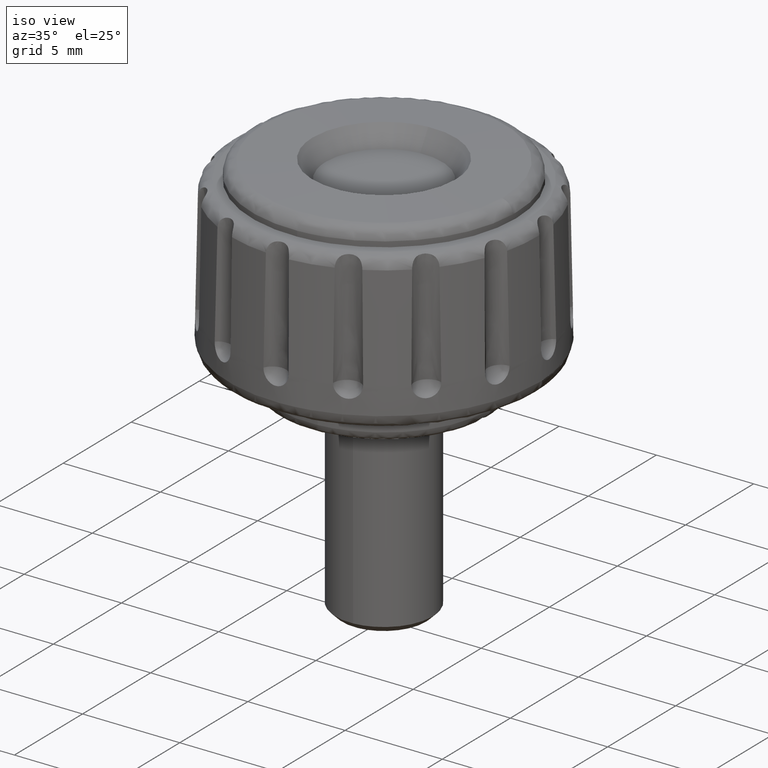
[diagram: clean part render]
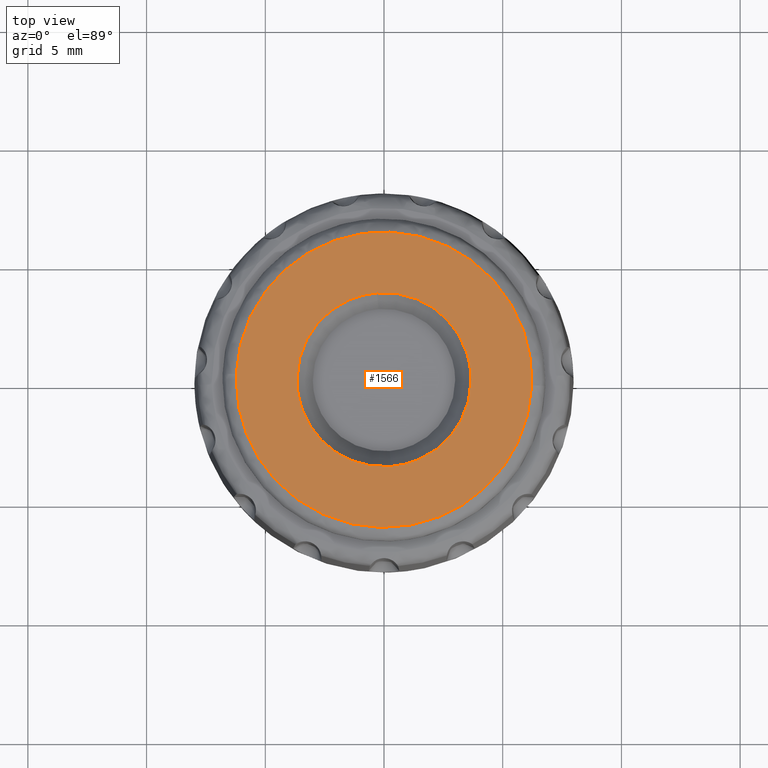
[diagram: tour spotlight — one face highlighted and labeled with its STEP entity id]
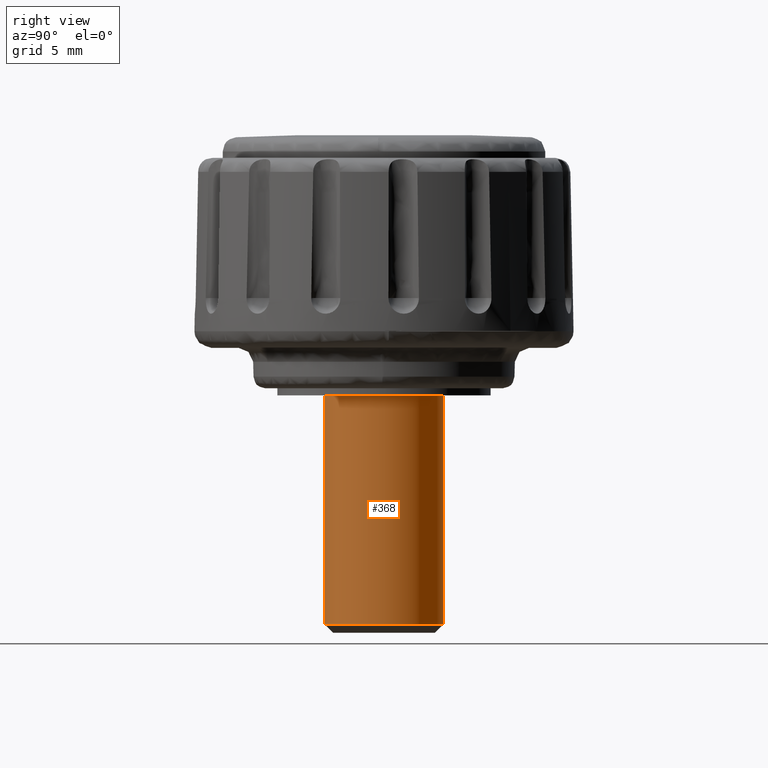
[diagram: tour spotlight — one face highlighted and labeled with its STEP entity id]
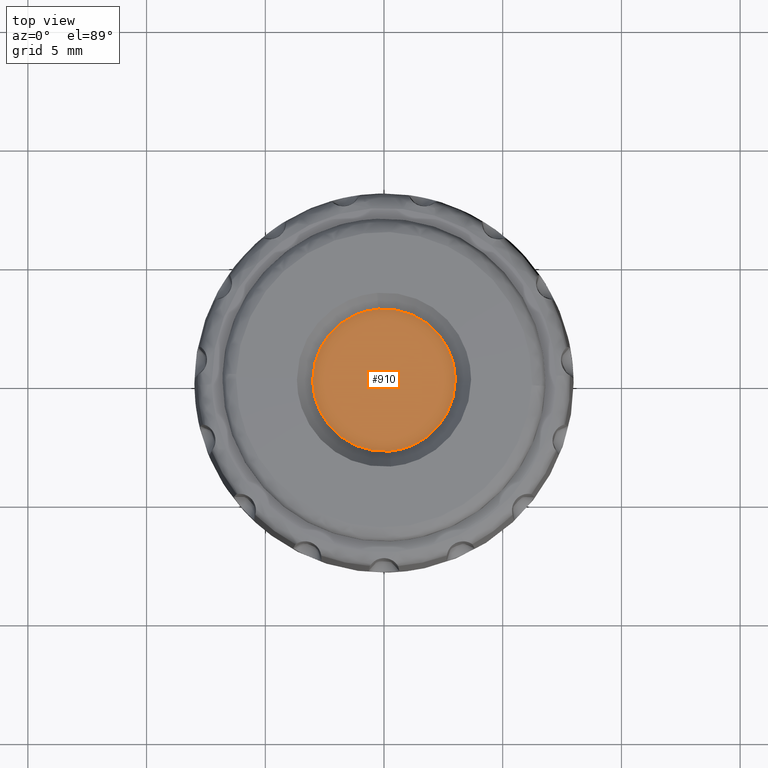
[diagram: tour spotlight — one face highlighted and labeled with its STEP entity id]
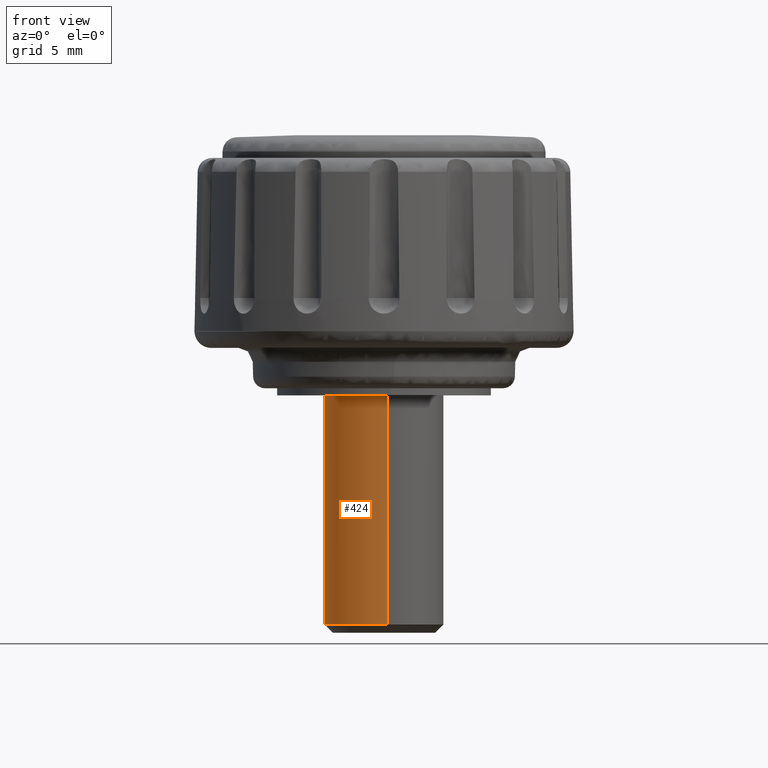
[diagram: tour spotlight — one face highlighted and labeled with its STEP entity id]
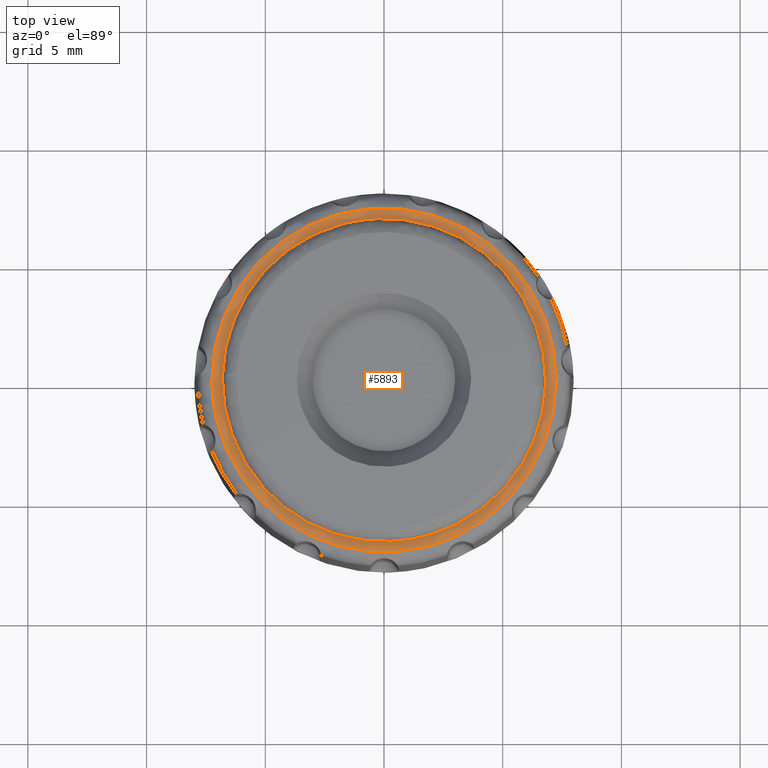
[diagram: tour spotlight — one face highlighted and labeled with its STEP entity id]
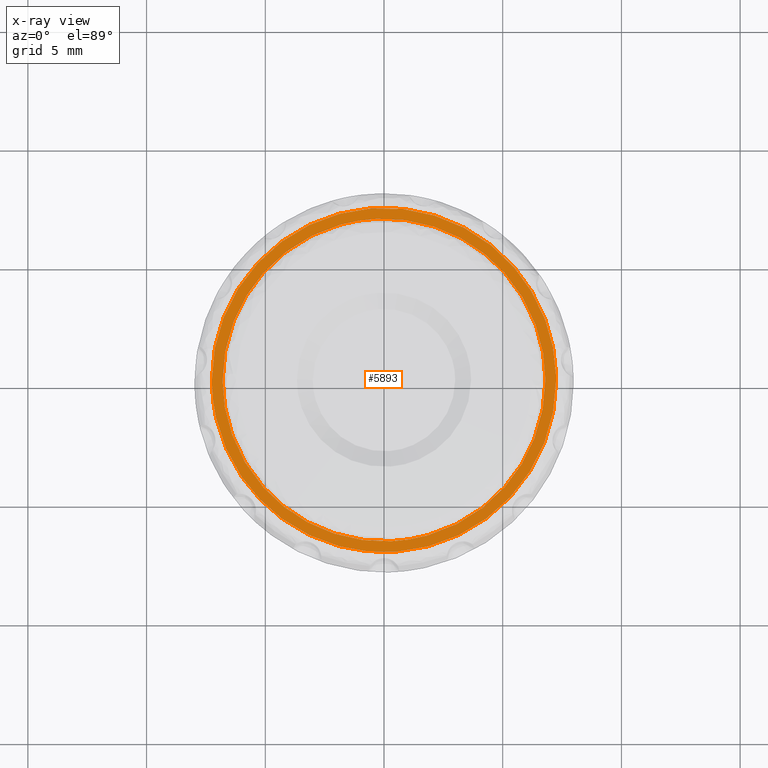
[diagram: x-ray of the same camera — body ghosted, this tour face saturated]
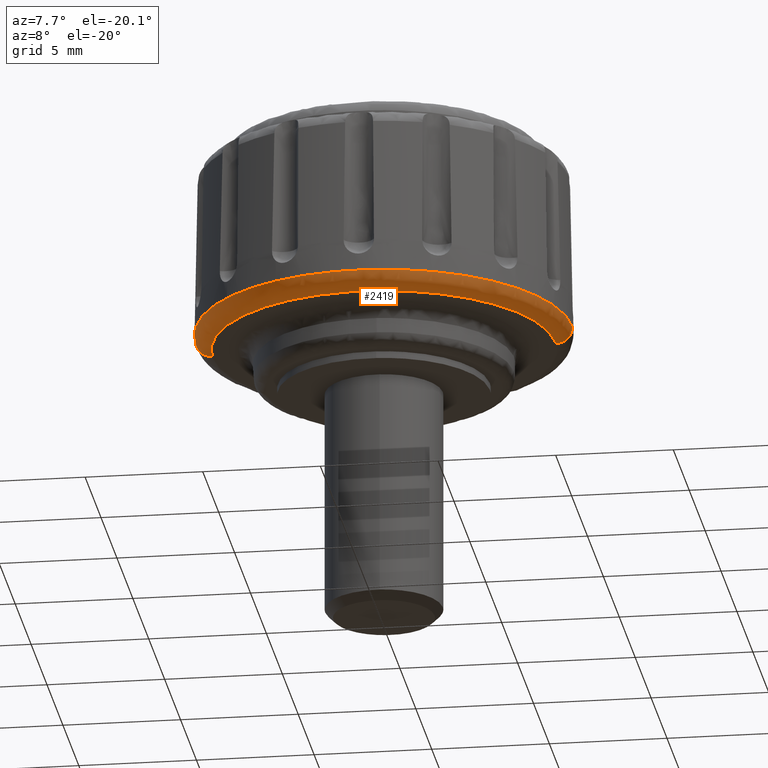
[diagram: tour spotlight — one face highlighted and labeled with its STEP entity id]
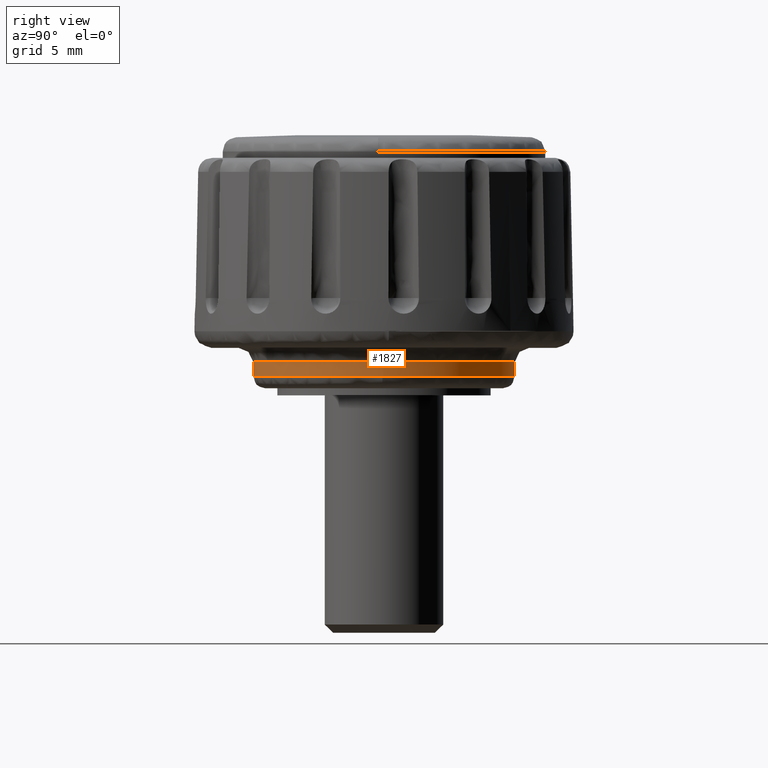
[diagram: tour spotlight — one face highlighted and labeled with its STEP entity id]
A machine part: a face-by-face anatomy tour. The part has 70 B-rep faces; the first image is the clean iso view, then the 7 largest visible faces are spotlighted one at a time (largest first), each with its STEP entity span.

Face 1 — top view, entity #1566. In plain terms, the highlighted face is a freeform B-spline surface patch.
Definition (entity closure, byte-faithful):
#930=CARTESIAN_POINT('',(-0.287849710456376,3.657477354075394,10.955126627766569));
#931=VERTEX_POINT('',#930);
#937=CARTESIAN_POINT('',(-3.668787000000000,0.0,10.955126627763621));
#938=VERTEX_POINT('',#937);
#939=CARTESIAN_POINT('',(-3.668787000000000,0.0,10.955126627763621));
#940=CARTESIAN_POINT('',(-3.668787000000081,3.391391818703396,10.955126627765093));
#941=CARTESIAN_POINT('',(-0.287849710456376,3.657477354075394,10.955126627766576));
#949=(BOUNDED_CURVE()B_SPLINE_CURVE(2,(#939,#940,#941),.UNSPECIFIED.,.F.,.U.)B_SPLINE_CURVE_WITH_KNOTS((3,3),(0.0,0.236331300631917),.UNSPECIFIED.)CURVE()GEOMETRIC_REPRESENTATION_ITEM()RATIONAL_B_SPLINE_CURVE((1.0,0.723120658606193,0.969723356170041))REPRESENTATION_ITEM(''));
#950=EDGE_CURVE('',#938,#931,#949,.T.);
#952=CARTESIAN_POINT('',(0.287849710456377,-3.657477354075394,10.955126627766569));
#953=VERTEX_POINT('',#952);
#954=CARTESIAN_POINT('',(0.287849710456377,-3.657477354075394,10.955126627766576));
#955=CARTESIAN_POINT('',(0.144147033827620,-3.668787000002023,10.955126627766516));
#956=CARTESIAN_POINT('',(1.568727E-013,-3.668787000001982,10.955126627766459));
#957=CARTESIAN_POINT('',(-3.668786999999925,-3.668787000000951,10.955126627764983));
#958=CARTESIAN_POINT('',(-3.668787000000000,0.0,10.955126627763621));
#966=(BOUNDED_CURVE()B_SPLINE_CURVE(2,(#954,#955,#956,#957,#958),.UNSPECIFIED.,.F.,.U.)B_SPLINE_CURVE_WITH_KNOTS((3,2,3),(0.736331300631917,0.750000000000000,1.0),.UNSPECIFIED.)CURVE()GEOMETRIC_REPRESENTATION_ITEM()RATIONAL_B_SPLINE_CURVE((0.969723356170041,0.983986122580355,1.0,0.707106781186548,1.0))REPRESENTATION_ITEM(''));
#967=EDGE_CURVE('',#953,#938,#966,.T.);
#999=CARTESIAN_POINT('',(3.668787000000000,0.0,10.955126627763621));
#1000=VERTEX_POINT('',#999);
#1001=CARTESIAN_POINT('',(3.668787000000000,0.0,10.955126627763621));
#1002=CARTESIAN_POINT('',(3.668787000000082,-3.391391818703396,10.955126627765093));
#1003=CARTESIAN_POINT('',(0.287849710456377,-3.657477354075394,10.955126627766576));
#1011=(BOUNDED_CURVE()B_SPLINE_CURVE(2,(#1001,#1002,#1003),.UNSPECIFIED.,.F.,.U.)B_SPLINE_CURVE_WITH_KNOTS((3,3),(0.500000000000000,0.736331300631917),.UNSPECIFIED.)CURVE()GEOMETRIC_REPRESENTATION_ITEM()RATIONAL_B_SPLINE_CURVE((1.0,0.723120658606193,0.969723356170041))REPRESENTATION_ITEM(''));
#1012=EDGE_CURVE('',#1000,#953,#1011,.T.);
#1014=CARTESIAN_POINT('',(-0.287849710456376,3.657477354075394,10.955126627766576));
#1015=CARTESIAN_POINT('',(-0.144147033827619,3.668787000002023,10.955126627766516));
#1016=CARTESIAN_POINT('',(-1.560181E-013,3.668787000001982,10.955126627766459));
#1017=CARTESIAN_POINT('',(3.668786999999925,3.668787000000951,10.955126627764983));
#1018=CARTESIAN_POINT('',(3.668787000000000,0.0,10.955126627763621));
#1026=(BOUNDED_CURVE()B_SPLINE_CURVE(2,(#1014,#1015,#1016,#1017,#1018),.UNSPECIFIED.,.F.,.U.)B_SPLINE_CURVE_WITH_KNOTS((3,2,3),(0.236331300631917,0.250000000000000,0.500000000000000),.UNSPECIFIED.)CURVE()GEOMETRIC_REPRESENTATION_ITEM()RATIONAL_B_SPLINE_CURVE((0.969723356170041,0.983986122580355,1.0,0.707106781186548,1.0))REPRESENTATION_ITEM(''));
#1027=EDGE_CURVE('',#931,#1000,#1026,.T.);
#1440=CARTESIAN_POINT('',(-6.842584938718723,-6.841369040468142,10.687590337370745));
#1441=CARTESIAN_POINT('',(-3.423075122341281,-6.844933712892269,10.843741552545644));
#1442=CARTESIAN_POINT('',(3.423073881411423,-6.844933712892269,10.843741552545644));
#1443=CARTESIAN_POINT('',(6.842582460735132,-6.841369043051316,10.687590450527335));
#1444=CARTESIAN_POINT('',(-6.846148977055802,-3.422466222745382,10.843686033759671));
#1445=CARTESIAN_POINT('',(-3.424858999507990,-3.424250416625456,10.999999999999940));
#1446=CARTESIAN_POINT('',(3.424857757931443,-3.424250416625456,10.999999999999940));
#1447=CARTESIAN_POINT('',(6.846146497782872,-3.422466224038314,10.843686147034161));
#1448=CARTESIAN_POINT('',(-6.846148977055802,3.422466936260723,10.843686033759671));
#1449=CARTESIAN_POINT('',(-3.424858999507990,3.424251130512766,10.999999999999940));
#1450=CARTESIAN_POINT('',(3.424857757931443,3.424251130512766,10.999999999999940));
#1451=CARTESIAN_POINT('',(6.846146497782872,3.422466937553656,10.843686147034161));
#1452=CARTESIAN_POINT('',(-6.842584937233433,6.841370465270901,10.687590272318999));
#1453=CARTESIAN_POINT('',(-3.423075121597861,6.844935138436642,10.843741487426083));
#1454=CARTESIAN_POINT('',(3.423073880668004,6.844935138436642,10.843741487426083));
#1455=CARTESIAN_POINT('',(6.842582459249843,6.841370467854076,10.687590385475580));
#1463=(BOUNDED_SURFACE()B_SPLINE_SURFACE(2,2,((#1440,#1444,#1448,#1452),(#1441,#1445,#1449,#1453),(#1442,#1446,#1450,#1454),(#1443,#1447,#1451,#1455)),.UNSPECIFIED.,.F.,.F.,.U.)B_SPLINE_SURFACE_WITH_KNOTS((3,1,3),(3,1,3),(59.045661298370362,65.726838369230023,72.408013018035888),(59.046848515129092,65.726838369230023,72.406829615974431),.UNSPECIFIED.)GEOMETRIC_REPRESENTATION_ITEM()RATIONAL_B_SPLINE_SURFACE(((1.001042451114767,1.000521318185178,1.000521318185178,1.001042451332059),(1.000521132929589,1.0,1.0,1.000521133146881),(1.000521132929589,1.0,1.0,1.000521133146881),(1.001042450736792,1.000521317807203,1.000521317807203,1.001042450954084)))REPRESENTATION_ITEM('')SURFACE());
#1464=CARTESIAN_POINT('',(6.220475634358385,-0.234617565187762,10.870779798733491));
#1465=VERTEX_POINT('',#1464);
#1466=CARTESIAN_POINT('',(-6.224898594377520,0.0,10.870779798764380));
#1467=VERTEX_POINT('',#1466);
#1468=CARTESIAN_POINT('',(6.220475634358385,-0.234617565187762,10.870779798733491));
#1469=CARTESIAN_POINT('',(6.208173783704917,-0.561439092364687,10.870779798733560));
#1470=CARTESIAN_POINT('',(6.150929462350280,-1.050201036425728,10.870779798733579));
#1471=CARTESIAN_POINT('',(5.989891748375871,-1.723595386942302,10.870779798734009));
#1472=CARTESIAN_POINT('',(5.766315008530384,-2.392481588515238,10.870779798734500));
#1473=CARTESIAN_POINT('',(5.434895953793697,-3.073380094717841,10.870779798735279));
#1474=CARTESIAN_POINT('',(4.967933490291302,-3.776338892214609,10.870779798736461));
#1475=CARTESIAN_POINT('',(4.418799920910224,-4.418382387793636,10.870779798737580));
#1476=CARTESIAN_POINT('',(3.692407329620270,-5.044846080415121,10.870779798739610));
#1477=CARTESIAN_POINT('',(2.896846377810043,-5.533686258949026,10.870779798741580));
#1478=CARTESIAN_POINT('',(2.144970437151708,-5.859160479716719,10.870779798743200));
#1479=CARTESIAN_POINT('',(1.432803263818127,-6.071930159435859,10.870779798745261));
#1480=CARTESIAN_POINT('',(0.713061734980990,-6.199296783041921,10.870779798746820));
#1481=CARTESIAN_POINT('',(0.033539385203336,-6.235952809869727,10.870779798748559));
#1482=CARTESIAN_POINT('',(-0.658088821247952,-6.201923674787508,10.870779798750281));
#1483=CARTESIAN_POINT('',(-1.243373519225865,-6.110325084727606,10.870779798751750));
#1484=CARTESIAN_POINT('',(-1.852346690451766,-5.951389304826133,10.870779798753320));
#1485=CARTESIAN_POINT('',(-2.528457748014136,-5.709836163707545,10.870779798754519));
#1486=CARTESIAN_POINT('',(-3.200468850414641,-5.360333706327431,10.870779798757511));
#1487=CARTESIAN_POINT('',(-3.850720214243210,-4.905904046801412,10.870779798757461));
#1488=CARTESIAN_POINT('',(-4.421181401521106,-4.409607004379440,10.870779798760360));
#1489=CARTESIAN_POINT('',(-4.985783033724323,-3.763768094997667,10.870779798760820));
#1490=CARTESIAN_POINT('',(-5.464237616751936,-3.022010715853714,10.870779798762539));
#1491=CARTESIAN_POINT('',(-5.853324708001634,-2.187988149793772,10.870779798762950));
#1492=CARTESIAN_POINT('',(-6.147857610609179,-1.182406979152248,10.870779798764820));
#1493=CARTESIAN_POINT('',(-6.224952292955317,-0.415111123709290,10.870779798763429));
#1494=CARTESIAN_POINT('',(-6.224898594377520,0.0,10.870779798764380));
#1495=B_SPLINE_CURVE_WITH_KNOTS('',3,(#1468,#1469,#1470,#1471,#1472,#1473,#1474,#1475,#1476,#1477,#1478,#1479,#1480,#1481,#1482,#1483,#1484,#1485,#1486,#1487,#1488,#1489,#1490,#1491,#1492,#1493,#1494),.UNSPECIFIED.,.F.,.U.,(4,1,1,1,1,1,1,1,1,1,1,1,1,1,1,1,1,1,1,1,1,1,1,1,4),(8.908252E-009,0.981154910276175,1.471742935627116,2.075538776860071,3.094447347951654,3.735984203134551,4.603940079645629,5.622848441756098,6.604017890105361,7.396501706436810,8.075771319313601,8.830520001088532,9.585251690397197,10.113559408550129,10.906043012866160,11.358891374113259,12.000428057036389,13.057073436578040,13.623133194608659,14.377877755639171,15.321311323758110,16.189269197168102,17.019490240696818,18.076130416314111,19.321452132312238),.UNSPECIFIED.);
#1496=EDGE_CURVE('',#1465,#1467,#1495,.T.);
#1497=ORIENTED_EDGE('',*,*,#1496,.F.);
#1498=CARTESIAN_POINT('',(6.224898594377520,0.0,10.870779798764380));
#1499=VERTEX_POINT('',#1498);
#1500=CARTESIAN_POINT('',(6.224898594377520,0.0,10.870779798764380));
#1501=CARTESIAN_POINT('',(6.224898594749059,-0.117350472954726,10.870779798748940));
#1502=CARTESIAN_POINT('',(6.220475634358385,-0.234617565187762,10.870779798733494));
#1510=(BOUNDED_CURVE()B_SPLINE_CURVE(2,(#1500,#1501,#1502),.UNSPECIFIED.,.F.,.U.)B_SPLINE_CURVE_WITH_KNOTS((3,3),(0.500000000000000,0.506613471418338),.UNSPECIFIED.)CURVE()GEOMETRIC_REPRESENTATION_ITEM()RATIONAL_B_SPLINE_CURVE((1.0,0.992251836275009,0.984913610624737))REPRESENTATION_ITEM(''));
#1511=EDGE_CURVE('',#1499,#1465,#1510,.T.);
#1512=ORIENTED_EDGE('',*,*,#1511,.F.);
#1513=CARTESIAN_POINT('',(-6.220475634358387,0.234617565187760,10.870779798733491));
#1514=VERTEX_POINT('',#1513);
#1515=CARTESIAN_POINT('',(-6.220475634358387,0.234617565187760,10.870779798733491));
#1516=CARTESIAN_POINT('',(-6.210056680379447,0.511157504933925,10.870779798733530));
#1517=CARTESIAN_POINT('',(-6.153553183164426,1.050302957351179,10.870779798733601));
#1518=CARTESIAN_POINT('',(-5.948377312421779,1.908435589016964,10.870779798734111));
#1519=CARTESIAN_POINT('',(-5.643904917920787,2.670221266301666,10.870779798734810));
#1520=CARTESIAN_POINT('',(-5.216903175688434,3.427209381068474,10.870779798735949));
#1521=CARTESIAN_POINT('',(-4.749248359759423,4.054143930521550,10.870779798736921));
#1522=CARTESIAN_POINT('',(-4.165891679507184,4.647019269349337,10.870779798738351));
#1523=CARTESIAN_POINT('',(-3.632052480824791,5.069271581167365,10.870779798740070));
#1524=CARTESIAN_POINT('',(-3.068950453887775,5.427158789095152,10.870779798740140));
#1525=CARTESIAN_POINT('',(-2.551981429822660,5.689217656667692,10.870779798744151));
#1526=CARTESIAN_POINT('',(-1.917899096820159,5.934528453626548,10.870779798742920));
#1527=CARTESIAN_POINT('',(-1.272836427400053,6.108236415274913,10.870779798745870));
#1528=CARTESIAN_POINT('',(-0.587213207010353,6.208226936720228,10.870779798747099));
#1529=CARTESIAN_POINT('',(0.205506133415395,6.241393670858670,10.870779798749190));
#1530=CARTESIAN_POINT('',(1.047766439666529,6.161446601218815,10.870779798751240));
#1531=CARTESIAN_POINT('',(2.025179456651024,5.912689759735097,10.870779798753690));
#1532=CARTESIAN_POINT('',(2.872861355758932,5.550490148683154,10.870779798755800));
#1533=CARTESIAN_POINT('',(3.664078631518977,5.056188420623236,10.870779798757789));
#1534=CARTESIAN_POINT('',(4.225891860324650,4.587944178986620,10.870779798759211));
#1535=CARTESIAN_POINT('',(4.741275118624464,4.053111346957226,10.870779798760470));
#1536=CARTESIAN_POINT('',(5.242377243547389,3.404502611615115,10.870779798762040));
#1537=CARTESIAN_POINT('',(5.678376202820231,2.606666132226561,10.870779798762211));
#1538=CARTESIAN_POINT('',(5.956126082825019,1.849456570909697,10.870779798764319));
#1539=CARTESIAN_POINT('',(6.164270481631395,1.018878871042433,10.870779798764531));
#1540=CARTESIAN_POINT('',(6.224956720280467,0.415112489958783,10.870779798763721));
#1541=CARTESIAN_POINT('',(6.224898594377520,0.0,10.870779798764380));
#1542=B_SPLINE_CURVE_WITH_KNOTS('',3,(#1515,#1516,#1517,#1518,#1519,#1520,#1521,#1522,#1523,#1524,#1525,#1526,#1527,#1528,#1529,#1530,#1531,#1532,#1533,#1534,#1535,#1536,#1537,#1538,#1539,#1540,#1541),.UNSPECIFIED.,.F.,.U.,(4,1,1,1,1,1,1,1,1,1,1,1,1,1,1,1,1,1,1,1,1,1,1,1,4),(8.904493E-009,0.830208248988406,1.622689593648172,2.641597926346634,3.283133570486971,4.226566586188028,4.981313433393490,5.773797305607783,6.264382520557284,6.981386172531737,7.509710302847177,8.302188278837862,8.981463517382805,9.585251690396126,10.679620096454910,11.509839433170450,12.604224821819830,13.434447314878669,14.302402959731999,14.792987655271050,15.660945918064170,16.755327638871311,17.510073509401099,18.076130416314069,19.321452132312270),.UNSPECIFIED.);
#1543=EDGE_CURVE('',#1514,#1499,#1542,.T.);
#1544=ORIENTED_EDGE('',*,*,#1543,.F.);
#1545=CARTESIAN_POINT('',(-6.224898594377520,0.0,10.870779798764380));
#1546=CARTESIAN_POINT('',(-6.224898594749060,0.117350472954725,10.870779798748938));
#1547=CARTESIAN_POINT('',(-6.220475634358387,0.234617565187760,10.870779798733494));
#1555=(BOUNDED_CURVE()B_SPLINE_CURVE(2,(#1545,#1546,#1547),.UNSPECIFIED.,.F.,.U.)B_SPLINE_CURVE_WITH_KNOTS((3,3),(0.0,0.006613471418338),.UNSPECIFIED.)CURVE()GEOMETRIC_REPRESENTATION_ITEM()RATIONAL_B_SPLINE_CURVE((1.0,0.992251836275009,0.984913610624737))REPRESENTATION_ITEM(''));
#1556=EDGE_CURVE('',#1467,#1514,#1555,.T.);
#1557=ORIENTED_EDGE('',*,*,#1556,.F.);
#1558=EDGE_LOOP('',(#1497,#1512,#1544,#1557));
#1559=FACE_OUTER_BOUND('',#1558,.T.);
#1560=ORIENTED_EDGE('',*,*,#1012,.T.);
#1561=ORIENTED_EDGE('',*,*,#967,.T.);
#1562=ORIENTED_EDGE('',*,*,#950,.T.);
#1563=ORIENTED_EDGE('',*,*,#1027,.T.);
#1564=EDGE_LOOP('',(#1560,#1561,#1562,#1563));
#1565=FACE_BOUND('',#1564,.T.);
#1566=ADVANCED_FACE('',(#1559,#1565),#1463,.T.);

Face 2 — right view, entity #368. In plain terms, the highlighted face is a freeform B-spline surface patch.
Definition (entity closure, byte-faithful):
#191=CARTESIAN_POINT('',(0.196147739366928,-2.492293334335137,-9.653777999993935));
#192=VERTEX_POINT('',#191);
#198=CARTESIAN_POINT('',(0.152620301198658,-2.495337060130540,-9.653778000000003));
#199=VERTEX_POINT('',#198);
#200=CARTESIAN_POINT('',(0.196147739366928,-2.492293334335138,-9.653777999993935));
#201=CARTESIAN_POINT('',(0.174397301698631,-2.494005130901095,-9.653777999996970));
#202=CARTESIAN_POINT('',(0.152620301198658,-2.495337060130540,-9.653778000000003));
#210=(BOUNDED_CURVE()B_SPLINE_CURVE(2,(#200,#201,#202),.UNSPECIFIED.,.F.,.U.)B_SPLINE_CURVE_WITH_KNOTS((3,3),(0.736331300629545,0.739333034683754),.UNSPECIFIED.)CURVE()GEOMETRIC_REPRESENTATION_ITEM()RATIONAL_B_SPLINE_CURVE((0.969723356165092,0.972855551152138,0.976072196929787))REPRESENTATION_ITEM(''));
#211=EDGE_CURVE('',#192,#199,#210,.T.);
#249=CARTESIAN_POINT('',(-0.152620301198658,2.495337060130540,-9.653777999999999));
#250=VERTEX_POINT('',#249);
#264=CARTESIAN_POINT('',(2.500000000000000,0.0,-9.653778000000001));
#265=VERTEX_POINT('',#264);
#266=CARTESIAN_POINT('',(-0.152620301198658,2.495337060130541,-9.653777999999999));
#267=CARTESIAN_POINT('',(-0.076381382958495,2.499999999999784,-9.653777999999999));
#268=CARTESIAN_POINT('',(1.290077E-014,2.499999999999787,-9.653777999999999));
#269=CARTESIAN_POINT('',(2.500000000000006,2.499999999999897,-9.653778000000001));
#270=CARTESIAN_POINT('',(2.500000000000000,0.0,-9.653778000000001));
#278=(BOUNDED_CURVE()B_SPLINE_CURVE(2,(#266,#267,#268,#269,#270),.UNSPECIFIED.,.F.,.U.)B_SPLINE_CURVE_WITH_KNOTS((3,2,3),(0.239333034683754,0.250000000000000,0.500000000000000),.UNSPECIFIED.)CURVE()GEOMETRIC_REPRESENTATION_ITEM()RATIONAL_B_SPLINE_CURVE((0.976072196929787,0.987502872774213,1.0,0.707106781186548,1.0))REPRESENTATION_ITEM(''));
#279=EDGE_CURVE('',#250,#265,#278,.T.);
#281=CARTESIAN_POINT('',(2.500000000000000,0.0,-9.653778000000001));
#282=CARTESIAN_POINT('',(2.500000000000238,-2.310976229104955,-9.653777999996967));
#283=CARTESIAN_POINT('',(0.196147739366928,-2.492293334335138,-9.653777999993935));
#291=(BOUNDED_CURVE()B_SPLINE_CURVE(2,(#281,#282,#283),.UNSPECIFIED.,.F.,.U.)B_SPLINE_CURVE_WITH_KNOTS((3,3),(0.500000000000000,0.736331300629545),.UNSPECIFIED.)CURVE()GEOMETRIC_REPRESENTATION_ITEM()RATIONAL_B_SPLINE_CURVE((1.0,0.723120658608971,0.969723356165092))REPRESENTATION_ITEM(''));
#292=EDGE_CURVE('',#265,#192,#291,.T.);
#301=CARTESIAN_POINT('',(-0.152621348837143,2.495336996054667,0.241344450000000));
#302=CARTESIAN_POINT('',(2.342715647217524,2.647958344891809,0.241344450000000));
#303=CARTESIAN_POINT('',(2.495336996054667,0.152621348837143,0.241344450000000));
#304=CARTESIAN_POINT('',(2.647958344891809,-2.342715647217524,0.241344450000000));
#305=CARTESIAN_POINT('',(0.152621348837143,-2.495336996054667,0.241344450000000));
#306=CARTESIAN_POINT('',(-0.152621348837143,2.495336996054667,-9.901156061250003));
#307=CARTESIAN_POINT('',(2.342715647217524,2.647958344891809,-9.901156061250003));
#308=CARTESIAN_POINT('',(2.495336996054667,0.152621348837143,-9.901156061250003));
#309=CARTESIAN_POINT('',(2.647958344891809,-2.342715647217524,-9.901156061250003));
#310=CARTESIAN_POINT('',(0.152621348837143,-2.495336996054667,-9.901156061250003));
#318=(BOUNDED_SURFACE()B_SPLINE_SURFACE(2,1,((#301,#306),(#302,#307),(#303,#308),(#304,#309),(#305,#310)),.UNSPECIFIED.,.F.,.F.,.U.)B_SPLINE_SURFACE_WITH_KNOTS((3,2,3),(2,2),(0.0,4.142135623730949,8.284271247461899),(0.0,10.142500511250010),.UNSPECIFIED.)GEOMETRIC_REPRESENTATION_ITEM()RATIONAL_B_SPLINE_SURFACE(((1.0,1.0),(0.707106781186548,0.707106781186548),(1.0,1.0),(0.707106781186548,0.707106781186548),(1.0,1.0)))REPRESENTATION_ITEM('')SURFACE());
#319=ORIENTED_EDGE('',*,*,#279,.F.);
#320=CARTESIAN_POINT('',(-0.152620314147655,2.495337059338556,-2.220446E-016));
#321=VERTEX_POINT('',#320);
#322=CARTESIAN_POINT('',(-0.152620314147655,2.495337059338556,-2.220446E-016));
#323=CARTESIAN_POINT('',(-0.152620301198658,2.495337060130540,-9.653777999999999));
#324=QUASI_UNIFORM_CURVE('',1,(#322,#323),.UNSPECIFIED.,.F.,.U.);
#325=EDGE_CURVE('',#321,#250,#324,.T.);
#326=ORIENTED_EDGE('',*,*,#325,.F.);
#327=CARTESIAN_POINT('',(2.500000000000000,0.0,0.0));
#328=VERTEX_POINT('',#327);
#329=CARTESIAN_POINT('',(-0.152620314147654,2.495337059338556,-2.220446E-016));
#330=CARTESIAN_POINT('',(-0.076381389451147,2.499999999999788,-2.188537E-016));
#331=CARTESIAN_POINT('',(1.276611E-014,2.499999999999791,-2.154617E-016));
#332=CARTESIAN_POINT('',(2.500000000000006,2.499999999999898,-1.044394E-016));
#333=CARTESIAN_POINT('',(2.500000000000000,0.0,0.0));
#341=(BOUNDED_CURVE()B_SPLINE_CURVE(2,(#329,#330,#331,#332,#333),.UNSPECIFIED.,.F.,.U.)B_SPLINE_CURVE_WITH_KNOTS((3,2,3),(0.239333033788360,0.250000000000000,0.500000000000000),.UNSPECIFIED.)CURVE()GEOMETRIC_REPRESENTATION_ITEM()RATIONAL_B_SPLINE_CURVE((0.976072195010787,0.987502871725194,1.0,0.707106781186548,1.0))REPRESENTATION_ITEM(''));
#342=EDGE_CURVE('',#321,#328,#341,.T.);
#343=ORIENTED_EDGE('',*,*,#342,.T.);
#344=CARTESIAN_POINT('',(0.152620314147654,-2.495337059338556,-2.220446E-016));
#345=VERTEX_POINT('',#344);
#346=CARTESIAN_POINT('',(2.500000000000000,0.0,0.0));
#347=CARTESIAN_POINT('',(2.499999999999994,-2.351766144244104,-1.110223E-016));
#348=CARTESIAN_POINT('',(0.152620314147654,-2.495337059338556,-2.220446E-016));
#356=(BOUNDED_CURVE()B_SPLINE_CURVE(2,(#346,#347,#348),.UNSPECIFIED.,.F.,.U.)B_SPLINE_CURVE_WITH_KNOTS((3,3),(0.500000000000000,0.739333033788360),.UNSPECIFIED.)CURVE()GEOMETRIC_REPRESENTATION_ITEM()RATIONAL_B_SPLINE_CURVE((1.0,0.719603909461353,0.976072195010788))REPRESENTATION_ITEM(''));
#357=EDGE_CURVE('',#328,#345,#356,.T.);
#358=ORIENTED_EDGE('',*,*,#357,.T.);
#359=CARTESIAN_POINT('',(0.152620314147654,-2.495337059338556,-2.220446E-016));
#360=CARTESIAN_POINT('',(0.152620301198658,-2.495337060130540,-9.653778000000003));
#361=QUASI_UNIFORM_CURVE('',1,(#359,#360),.UNSPECIFIED.,.F.,.U.);
#362=EDGE_CURVE('',#345,#199,#361,.T.);
#363=ORIENTED_EDGE('',*,*,#362,.T.);
#364=ORIENTED_EDGE('',*,*,#211,.F.);
#365=ORIENTED_EDGE('',*,*,#292,.F.);
#366=EDGE_LOOP('',(#319,#326,#343,#358,#363,#364,#365));
#367=FACE_OUTER_BOUND('',#366,.T.);
#368=ADVANCED_FACE('',(#367),#318,.T.);

Face 3 — top view, entity #910. In plain terms, the highlighted face is a freeform B-spline surface patch.
Definition (entity closure, byte-faithful):
#839=CARTESIAN_POINT('',(-3.299699988370835,-3.298784314504252,10.0));
#840=CARTESIAN_POINT('',(3.299700149303376,-3.298784314504252,10.0));
#841=CARTESIAN_POINT('',(-3.299699988370835,3.298784421792613,10.0));
#842=CARTESIAN_POINT('',(3.299700149303376,3.298784421792613,10.0));
#843=B_SPLINE_SURFACE_WITH_KNOTS('',1,1,((#839,#841),(#840,#842)),.UNSPECIFIED.,.F.,.F.,.U.,(2,2),(2,2),(0.0,6.599400137674212),(0.0,6.597568736296865),.UNSPECIFIED.);
#844=CARTESIAN_POINT('',(0.235377287216067,-2.990752001200515,10.000000000005249));
#845=VERTEX_POINT('',#844);
#846=CARTESIAN_POINT('',(-3.0,0.0,10.0));
#847=VERTEX_POINT('',#846);
#848=CARTESIAN_POINT('',(0.235377287216067,-2.990752001200515,10.000000000005249));
#849=CARTESIAN_POINT('',(0.117870321039490,-3.000000000003602,10.000000000005153));
#850=CARTESIAN_POINT('',(2.787068E-013,-3.000000000003530,10.000000000005050));
#851=CARTESIAN_POINT('',(-2.999999999999866,-3.000000000001696,10.000000000002428));
#852=CARTESIAN_POINT('',(-3.0,0.0,10.0));
#860=(BOUNDED_CURVE()B_SPLINE_CURVE(2,(#848,#849,#850,#851,#852),.UNSPECIFIED.,.F.,.U.)B_SPLINE_CURVE_WITH_KNOTS((3,2,3),(0.736331300630919,0.750000000000000,1.0),.UNSPECIFIED.)CURVE()GEOMETRIC_REPRESENTATION_ITEM()RATIONAL_B_SPLINE_CURVE((0.969723356167959,0.983986122579186,1.0,0.707106781186548,1.0))REPRESENTATION_ITEM(''));
#861=EDGE_CURVE('',#845,#847,#860,.T.);
#862=ORIENTED_EDGE('',*,*,#861,.F.);
#863=CARTESIAN_POINT('',(3.0,0.0,10.0));
#864=VERTEX_POINT('',#863);
#865=CARTESIAN_POINT('',(3.0,0.0,10.0));
#866=CARTESIAN_POINT('',(3.000000000000145,-2.773171474946466,10.000000000002625));
#867=CARTESIAN_POINT('',(0.235377287216067,-2.990752001200515,10.000000000005249));
#875=(BOUNDED_CURVE()B_SPLINE_CURVE(2,(#865,#866,#867),.UNSPECIFIED.,.F.,.U.)B_SPLINE_CURVE_WITH_KNOTS((3,3),(0.500000000000000,0.736331300630919),.UNSPECIFIED.)CURVE()GEOMETRIC_REPRESENTATION_ITEM()RATIONAL_B_SPLINE_CURVE((1.0,0.723120658607362,0.969723356167959))REPRESENTATION_ITEM(''));
#876=EDGE_CURVE('',#864,#845,#875,.T.);
#877=ORIENTED_EDGE('',*,*,#876,.F.);
#878=CARTESIAN_POINT('',(-0.235377287216068,2.990752001200515,10.000000000005249));
#879=VERTEX_POINT('',#878);
#880=CARTESIAN_POINT('',(-0.235377287216068,2.990752001200516,10.000000000005249));
#881=CARTESIAN_POINT('',(-0.117870321039489,3.000000000003602,10.000000000005155));
#882=CARTESIAN_POINT('',(-2.778789E-013,3.000000000003531,10.000000000005050));
#883=CARTESIAN_POINT('',(2.999999999999866,3.000000000001696,10.000000000002428));
#884=CARTESIAN_POINT('',(3.0,0.0,10.0));
#892=(BOUNDED_CURVE()B_SPLINE_CURVE(2,(#880,#881,#882,#883,#884),.UNSPECIFIED.,.F.,.U.)B_SPLINE_CURVE_WITH_KNOTS((3,2,3),(0.236331300630919,0.250000000000000,0.500000000000000),.UNSPECIFIED.)CURVE()GEOMETRIC_REPRESENTATION_ITEM()RATIONAL_B_SPLINE_CURVE((0.969723356167958,0.983986122579186,1.0,0.707106781186548,1.0))REPRESENTATION_ITEM(''));
#893=EDGE_CURVE('',#879,#864,#892,.T.);
#894=ORIENTED_EDGE('',*,*,#893,.F.);
#895=CARTESIAN_POINT('',(-3.0,0.0,10.0));
#896=CARTESIAN_POINT('',(-3.000000000000145,2.773171474946466,10.000000000002624));
#897=CARTESIAN_POINT('',(-0.235377287216068,2.990752001200516,10.000000000005249));
#905=(BOUNDED_CURVE()B_SPLINE_CURVE(2,(#895,#896,#897),.UNSPECIFIED.,.F.,.U.)B_SPLINE_CURVE_WITH_KNOTS((3,3),(0.0,0.236331300630919),.UNSPECIFIED.)CURVE()GEOMETRIC_REPRESENTATION_ITEM()RATIONAL_B_SPLINE_CURVE((1.0,0.723120658607362,0.969723356167958))REPRESENTATION_ITEM(''));
#906=EDGE_CURVE('',#847,#879,#905,.T.);
#907=ORIENTED_EDGE('',*,*,#906,.F.);
#908=EDGE_LOOP('',(#862,#877,#894,#907));
#909=FACE_OUTER_BOUND('',#908,.T.);
#910=ADVANCED_FACE('',(#909),#843,.T.);

Face 4 — front view, entity #424. In plain terms, the highlighted face is a freeform B-spline surface patch.
Definition (entity closure, byte-faithful):
#167=CARTESIAN_POINT('',(-2.500000000000000,0.0,-9.653778000000001));
#168=VERTEX_POINT('',#167);
#169=CARTESIAN_POINT('',(-0.196147739366928,2.492293334335139,-9.653777999993931));
#170=VERTEX_POINT('',#169);
#171=CARTESIAN_POINT('',(-2.500000000000000,0.0,-9.653778000000001));
#172=CARTESIAN_POINT('',(-2.500000000000238,2.310976229104955,-9.653777999996967));
#173=CARTESIAN_POINT('',(-0.196147739366928,2.492293334335139,-9.653777999993931));
#181=(BOUNDED_CURVE()B_SPLINE_CURVE(2,(#171,#172,#173),.UNSPECIFIED.,.F.,.U.)B_SPLINE_CURVE_WITH_KNOTS((3,3),(0.0,0.236331300629545),.UNSPECIFIED.)CURVE()GEOMETRIC_REPRESENTATION_ITEM()RATIONAL_B_SPLINE_CURVE((1.0,0.723120658608971,0.969723356165092))REPRESENTATION_ITEM(''));
#182=EDGE_CURVE('',#168,#170,#181,.T.);
#198=CARTESIAN_POINT('',(0.152620301198658,-2.495337060130540,-9.653778000000003));
#199=VERTEX_POINT('',#198);
#213=CARTESIAN_POINT('',(0.152620301198658,-2.495337060130540,-9.653778000000003));
#214=CARTESIAN_POINT('',(0.076381382958495,-2.499999999999783,-9.653778000000003));
#215=CARTESIAN_POINT('',(-1.365489E-014,-2.499999999999786,-9.653778000000004));
#216=CARTESIAN_POINT('',(-2.500000000000007,-2.499999999999895,-9.653778000000003));
#217=CARTESIAN_POINT('',(-2.500000000000000,0.0,-9.653778000000001));
#225=(BOUNDED_CURVE()B_SPLINE_CURVE(2,(#213,#214,#215,#216,#217),.UNSPECIFIED.,.F.,.U.)B_SPLINE_CURVE_WITH_KNOTS((3,2,3),(0.739333034683754,0.750000000000000,1.0),.UNSPECIFIED.)CURVE()GEOMETRIC_REPRESENTATION_ITEM()RATIONAL_B_SPLINE_CURVE((0.976072196929787,0.987502872774213,1.0,0.707106781186548,1.0))REPRESENTATION_ITEM(''));
#226=EDGE_CURVE('',#199,#168,#225,.T.);
#249=CARTESIAN_POINT('',(-0.152620301198658,2.495337060130540,-9.653777999999999));
#250=VERTEX_POINT('',#249);
#251=CARTESIAN_POINT('',(-0.196147739366928,2.492293334335139,-9.653777999993931));
#252=CARTESIAN_POINT('',(-0.174397301698631,2.494005130901096,-9.653777999996963));
#253=CARTESIAN_POINT('',(-0.152620301198658,2.495337060130541,-9.653777999999999));
#261=(BOUNDED_CURVE()B_SPLINE_CURVE(2,(#251,#252,#253),.UNSPECIFIED.,.F.,.U.)B_SPLINE_CURVE_WITH_KNOTS((3,3),(0.236331300629545,0.239333034683754),.UNSPECIFIED.)CURVE()GEOMETRIC_REPRESENTATION_ITEM()RATIONAL_B_SPLINE_CURVE((0.969723356165092,0.972855551152138,0.976072196929787))REPRESENTATION_ITEM(''));
#262=EDGE_CURVE('',#170,#250,#261,.T.);
#320=CARTESIAN_POINT('',(-0.152620314147655,2.495337059338556,-2.220446E-016));
#321=VERTEX_POINT('',#320);
#322=CARTESIAN_POINT('',(-0.152620314147655,2.495337059338556,-2.220446E-016));
#323=CARTESIAN_POINT('',(-0.152620301198658,2.495337060130540,-9.653777999999999));
#324=QUASI_UNIFORM_CURVE('',1,(#322,#323),.UNSPECIFIED.,.F.,.U.);
#325=EDGE_CURVE('',#321,#250,#324,.T.);
#344=CARTESIAN_POINT('',(0.152620314147654,-2.495337059338556,-2.220446E-016));
#345=VERTEX_POINT('',#344);
#359=CARTESIAN_POINT('',(0.152620314147654,-2.495337059338556,-2.220446E-016));
#360=CARTESIAN_POINT('',(0.152620301198658,-2.495337060130540,-9.653778000000003));
#361=QUASI_UNIFORM_CURVE('',1,(#359,#360),.UNSPECIFIED.,.F.,.U.);
#362=EDGE_CURVE('',#345,#199,#361,.T.);
#369=CARTESIAN_POINT('',(0.152621348837143,-2.495336996054667,0.241344450000000));
#370=CARTESIAN_POINT('',(-2.342715647217524,-2.647958344891809,0.241344450000000));
#371=CARTESIAN_POINT('',(-2.495336996054667,-0.152621348837143,0.241344450000000));
#372=CARTESIAN_POINT('',(-2.647958344891809,2.342715647217524,0.241344450000000));
#373=CARTESIAN_POINT('',(-0.152621348837143,2.495336996054667,0.241344450000000));
#374=CARTESIAN_POINT('',(0.152621348837143,-2.495336996054667,-9.901156061250003));
#375=CARTESIAN_POINT('',(-2.342715647217524,-2.647958344891809,-9.901156061250003));
#376=CARTESIAN_POINT('',(-2.495336996054667,-0.152621348837143,-9.901156061250003));
#377=CARTESIAN_POINT('',(-2.647958344891809,2.342715647217524,-9.901156061250003));
#378=CARTESIAN_POINT('',(-0.152621348837143,2.495336996054667,-9.901156061250003));
#386=(BOUNDED_SURFACE()B_SPLINE_SURFACE(2,1,((#369,#374),(#370,#375),(#371,#376),(#372,#377),(#373,#378)),.UNSPECIFIED.,.F.,.F.,.U.)B_SPLINE_SURFACE_WITH_KNOTS((3,2,3),(2,2),(0.0,4.142135623730949,8.284271247461899),(0.0,10.142500511250010),.UNSPECIFIED.)GEOMETRIC_REPRESENTATION_ITEM()RATIONAL_B_SPLINE_SURFACE(((1.0,1.0),(0.707106781186548,0.707106781186548),(1.0,1.0),(0.707106781186548,0.707106781186548),(1.0,1.0)))REPRESENTATION_ITEM('')SURFACE());
#387=ORIENTED_EDGE('',*,*,#182,.F.);
#388=ORIENTED_EDGE('',*,*,#226,.F.);
#389=ORIENTED_EDGE('',*,*,#362,.F.);
#390=CARTESIAN_POINT('',(-2.500000000000000,0.0,0.0));
#391=VERTEX_POINT('',#390);
#392=CARTESIAN_POINT('',(0.152620314147654,-2.495337059338556,-2.220446E-016));
#393=CARTESIAN_POINT('',(0.076381389451148,-2.499999999999789,-2.188537E-016));
#394=CARTESIAN_POINT('',(-1.225438E-014,-2.499999999999792,-2.154617E-016));
#395=CARTESIAN_POINT('',(-2.500000000000006,-2.499999999999900,-1.044394E-016));
#396=CARTESIAN_POINT('',(-2.500000000000000,0.0,0.0));
#404=(BOUNDED_CURVE()B_SPLINE_CURVE(2,(#392,#393,#394,#395,#396),.UNSPECIFIED.,.F.,.U.)B_SPLINE_CURVE_WITH_KNOTS((3,2,3),(0.739333033788360,0.750000000000000,1.0),.UNSPECIFIED.)CURVE()GEOMETRIC_REPRESENTATION_ITEM()RATIONAL_B_SPLINE_CURVE((0.976072195010788,0.987502871725194,1.0,0.707106781186548,1.0))REPRESENTATION_ITEM(''));
#405=EDGE_CURVE('',#345,#391,#404,.T.);
#406=ORIENTED_EDGE('',*,*,#405,.T.);
#407=CARTESIAN_POINT('',(-2.500000000000000,0.0,0.0));
#408=CARTESIAN_POINT('',(-2.499999999999994,2.351766144244103,-1.110223E-016));
#409=CARTESIAN_POINT('',(-0.152620314147654,2.495337059338556,-2.220446E-016));
#417=(BOUNDED_CURVE()B_SPLINE_CURVE(2,(#407,#408,#409),.UNSPECIFIED.,.F.,.U.)B_SPLINE_CURVE_WITH_KNOTS((3,3),(0.0,0.239333033788360),.UNSPECIFIED.)CURVE()GEOMETRIC_REPRESENTATION_ITEM()RATIONAL_B_SPLINE_CURVE((1.0,0.719603909461353,0.976072195010787))REPRESENTATION_ITEM(''));
#418=EDGE_CURVE('',#391,#321,#417,.T.);
#419=ORIENTED_EDGE('',*,*,#418,.T.);
#420=ORIENTED_EDGE('',*,*,#325,.T.);
#421=ORIENTED_EDGE('',*,*,#262,.F.);
#422=EDGE_LOOP('',(#387,#388,#389,#406,#419,#420,#421));
#423=FACE_OUTER_BOUND('',#422,.T.);
#424=ADVANCED_FACE('',(#423),#386,.T.);

Face 5 — top view, entity #5893. An x-ray twin of the same camera follows (body ghosted, this face saturated) — the face is partly hidden behind the body. In plain terms, the highlighted face is a freeform B-spline surface patch.
Definition (entity closure, byte-faithful):
#1920=CARTESIAN_POINT('',(0.296610423336951,-6.793526967398231,9.999996039066680));
#1921=VERTEX_POINT('',#1920);
#1927=CARTESIAN_POINT('',(6.799999000000001,0.0,9.999996039066680));
#1928=VERTEX_POINT('',#1927);
#1929=CARTESIAN_POINT('',(6.799999000000001,0.0,9.999996039066680));
#1930=CARTESIAN_POINT('',(6.799998999999998,-6.509584201276114,9.999996039066680));
#1931=CARTESIAN_POINT('',(0.296610423336951,-6.793526967398231,9.999996039066680));
#1939=(BOUNDED_CURVE()B_SPLINE_CURVE(2,(#1929,#1930,#1931),.UNSPECIFIED.,.F.,.U.)B_SPLINE_CURVE_WITH_KNOTS((3,3),(0.500000000000000,0.742354573526442),.UNSPECIFIED.)CURVE()GEOMETRIC_REPRESENTATION_ITEM()RATIONAL_B_SPLINE_CURVE((1.0,0.716063955462716,0.982633502786377))REPRESENTATION_ITEM(''));
#1940=EDGE_CURVE('',#1928,#1921,#1939,.T.);
#1942=CARTESIAN_POINT('',(-0.296610423336950,6.793526967398231,9.999996039066680));
#1943=VERTEX_POINT('',#1942);
#1944=CARTESIAN_POINT('',(-0.296610423336950,6.793526967398231,9.999996039066680));
#1945=CARTESIAN_POINT('',(-0.148375821469580,6.799998999999863,9.999996039066680));
#1946=CARTESIAN_POINT('',(6.030160E-015,6.799998999999865,9.999996039066682));
#1947=CARTESIAN_POINT('',(6.799999000000002,6.799998999999933,9.999996039066682));
#1948=CARTESIAN_POINT('',(6.799999000000001,0.0,9.999996039066680));
#1956=(BOUNDED_CURVE()B_SPLINE_CURVE(2,(#1944,#1945,#1946,#1947,#1948),.UNSPECIFIED.,.F.,.U.)B_SPLINE_CURVE_WITH_KNOTS((3,2,3),(0.242354573526441,0.250000000000000,0.500000000000000),.UNSPECIFIED.)CURVE()GEOMETRIC_REPRESENTATION_ITEM()RATIONAL_B_SPLINE_CURVE((0.982633502786377,0.991042825723832,1.0,0.707106781186548,1.0))REPRESENTATION_ITEM(''));
#1957=EDGE_CURVE('',#1943,#1928,#1956,.T.);
#1987=CARTESIAN_POINT('',(-6.799999000000001,0.0,9.999996039066680));
#1988=VERTEX_POINT('',#1987);
#1989=CARTESIAN_POINT('',(-6.799999000000001,0.0,9.999996039066680));
#1990=CARTESIAN_POINT('',(-6.799998999999998,6.509584201276114,9.999996039066680));
#1991=CARTESIAN_POINT('',(-0.296610423336950,6.793526967398231,9.999996039066680));
#1999=(BOUNDED_CURVE()B_SPLINE_CURVE(2,(#1989,#1990,#1991),.UNSPECIFIED.,.F.,.U.)B_SPLINE_CURVE_WITH_KNOTS((3,3),(0.0,0.242354573526441),.UNSPECIFIED.)CURVE()GEOMETRIC_REPRESENTATION_ITEM()RATIONAL_B_SPLINE_CURVE((1.0,0.716063955462716,0.982633502786377))REPRESENTATION_ITEM(''));
#2000=EDGE_CURVE('',#1988,#1943,#1999,.T.);
#2002=CARTESIAN_POINT('',(0.296610423336951,-6.793526967398231,9.999996039066680));
#2003=CARTESIAN_POINT('',(0.148375821469581,-6.799998999999863,9.999996039066680));
#2004=CARTESIAN_POINT('',(-5.106622E-015,-6.799998999999865,9.999996039066682));
#2005=CARTESIAN_POINT('',(-6.799999000000002,-6.799998999999933,9.999996039066682));
#2006=CARTESIAN_POINT('',(-6.799999000000001,0.0,9.999996039066680));
#2014=(BOUNDED_CURVE()B_SPLINE_CURVE(2,(#2002,#2003,#2004,#2005,#2006),.UNSPECIFIED.,.F.,.U.)B_SPLINE_CURVE_WITH_KNOTS((3,2,3),(0.742354573526442,0.750000000000000,1.0),.UNSPECIFIED.)CURVE()GEOMETRIC_REPRESENTATION_ITEM()RATIONAL_B_SPLINE_CURVE((0.982633502786377,0.991042825723832,1.0,0.707106781186548,1.0))REPRESENTATION_ITEM(''));
#2015=EDGE_CURVE('',#1921,#1988,#2014,.T.);
#5782=CARTESIAN_POINT('',(7.973319690997838,-7.972690227912410,9.999996039066680));
#5783=CARTESIAN_POINT('',(-7.973320079871555,-7.972690227912410,9.999996039066680));
#5784=CARTESIAN_POINT('',(7.973319690997838,7.972690616755422,9.999996039066680));
#5785=CARTESIAN_POINT('',(-7.973320079871554,7.972690616755422,9.999996039066680));
#5786=B_SPLINE_SURFACE_WITH_KNOTS('',1,1,((#5782,#5784),(#5783,#5785)),.UNSPECIFIED.,.F.,.F.,.U.,(2,2),(2,2),(0.0,15.946639770869391),(0.0,15.945380844667829),.UNSPECIFIED.);
#5787=CARTESIAN_POINT('',(-7.246842343037660,-0.182171371536449,9.999996039066591));
#5788=VERTEX_POINT('',#5787);
#5789=CARTESIAN_POINT('',(-7.249131483860610,0.0,9.999996039066680));
#5790=VERTEX_POINT('',#5789);
#5791=CARTESIAN_POINT('',(-7.246842343037660,-0.182171371536449,9.999996039066591));
#5792=CARTESIAN_POINT('',(-7.249131590155348,-0.091100070957172,9.999996039066636));
#5793=CARTESIAN_POINT('',(-7.249131483860610,0.0,9.999996039066680));
#5801=(BOUNDED_CURVE()B_SPLINE_CURVE(2,(#5791,#5792,#5793),.UNSPECIFIED.,.F.,.U.)B_SPLINE_CURVE_WITH_KNOTS((3,3),(0.995579891766870,1.0),.UNSPECIFIED.)CURVE()GEOMETRIC_REPRESENTATION_ITEM()RATIONAL_B_SPLINE_CURVE((0.989826157674937,0.994821521088379,1.0))REPRESENTATION_ITEM(''));
#5802=EDGE_CURVE('',#5788,#5790,#5801,.T.);
#5803=ORIENTED_EDGE('',*,*,#5802,.F.);
#5804=CARTESIAN_POINT('',(7.249131483860610,0.0,9.999996039066680));
#5805=VERTEX_POINT('',#5804);
#5806=CARTESIAN_POINT('',(7.249131483860610,0.0,9.999996039066680));
#5807=CARTESIAN_POINT('',(7.249164962928817,-0.397116960767223,9.999996039066662));
#5808=CARTESIAN_POINT('',(7.195810313431536,-1.044257492168305,9.999996039066707));
#5809=CARTESIAN_POINT('',(6.996874965683401,-1.950529423721694,9.999996039066668));
#5810=CARTESIAN_POINT('',(6.723512699970525,-2.760123717798900,9.999996039066698));
#5811=CARTESIAN_POINT('',(6.344875703817274,-3.543104032818979,9.999996039066671));
#5812=CARTESIAN_POINT('',(5.898231114328465,-4.236614261151314,9.999996039066673));
#5813=CARTESIAN_POINT('',(5.446972436600822,-4.799646530892549,9.999996039066673));
#5814=CARTESIAN_POINT('',(4.965250895833593,-5.296448219067195,9.999996039066666));
#5815=CARTESIAN_POINT('',(4.349196949408161,-5.822214032302698,9.999996039066666));
#5816=CARTESIAN_POINT('',(3.599062453014382,-6.318763126420996,9.999996039066662));
#5817=CARTESIAN_POINT('',(2.735522743399041,-6.733525230142780,9.999996039066652));
#5818=CARTESIAN_POINT('',(1.939037118780785,-7.000110365708903,9.999996039066653));
#5819=CARTESIAN_POINT('',(1.046772755270594,-7.193515394932645,9.999996039066643));
#5820=CARTESIAN_POINT('',(0.076566462106351,-7.276778821012428,9.999996039066634));
#5821=CARTESIAN_POINT('',(-0.938744480602293,-7.209085674531999,9.999996039066627));
#5822=CARTESIAN_POINT('',(-1.906660740755237,-7.015466362124744,9.999996039066625));
#5823=CARTESIAN_POINT('',(-2.800084385463740,-6.711149528272437,9.999996039066625));
#5824=CARTESIAN_POINT('',(-3.695759966966820,-6.261518526453452,9.999996039066613));
#5825=CARTESIAN_POINT('',(-4.414130210048975,-5.770928439980809,9.999996039066605));
#5826=CARTESIAN_POINT('',(-5.092417441782352,-5.182226890607874,9.999996039066607));
#5827=CARTESIAN_POINT('',(-5.639421255503824,-4.583569911049192,9.999996039066611));
#5828=CARTESIAN_POINT('',(-6.100599803289901,-3.935632194696815,9.999996039066600));
#5829=CARTESIAN_POINT('',(-6.439574359296097,-3.349391997820551,9.999996039066604));
#5830=CARTESIAN_POINT('',(-6.781582586706900,-2.615365177971971,9.999996039066595));
#5831=CARTESIAN_POINT('',(-7.021032221096270,-1.870959956718197,9.999996039066600));
#5832=CARTESIAN_POINT('',(-7.192611174006339,-1.004712369741326,9.999996039066593));
#5833=CARTESIAN_POINT('',(-7.238723809407429,-0.505644857053090,9.999996039066595));
#5834=CARTESIAN_POINT('',(-7.246842343037660,-0.182171371536449,9.999996039066591));
#5835=B_SPLINE_CURVE_WITH_KNOTS('',3,(#5806,#5807,#5808,#5809,#5810,#5811,#5812,#5813,#5814,#5815,#5816,#5817,#5818,#5819,#5820,#5821,#5822,#5823,#5824,#5825,#5826,#5827,#5828,#5829,#5830,#5831,#5832,#5833,#5834),.UNSPECIFIED.,.F.,.U.,(4,1,1,1,1,1,1,1,1,1,1,1,1,1,1,1,1,1,1,1,1,1,1,1,1,1,4),(2.209699E-009,1.191345287044697,1.941459890370410,2.779826228442914,3.750564030403016,4.544804158118936,5.250795778392948,5.912662974280931,6.618654659239418,7.677641086703400,8.604255491410816,9.486734169659055,10.192730306097051,11.339960246677110,12.398932017893150,13.237297608880199,14.296284272237630,15.222893063722250,16.237756961275888,16.899622738846020,17.914483614735211,18.664596838557109,19.282343828716169,19.944205608906771,21.091439557970560,21.620937641749371,22.591662710734010),.UNSPECIFIED.);
#5836=EDGE_CURVE('',#5805,#5788,#5835,.T.);
#5837=ORIENTED_EDGE('',*,*,#5836,.F.);
#5838=CARTESIAN_POINT('',(7.246842343037660,0.182171371536449,9.999996039066591));
#5839=VERTEX_POINT('',#5838);
#5840=CARTESIAN_POINT('',(7.246842343037660,0.182171371536449,9.999996039066591));
#5841=CARTESIAN_POINT('',(7.249131590155349,0.091100070957172,9.999996039066636));
#5842=CARTESIAN_POINT('',(7.249131483860610,0.0,9.999996039066680));
#5850=(BOUNDED_CURVE()B_SPLINE_CURVE(2,(#5840,#5841,#5842),.UNSPECIFIED.,.F.,.U.)B_SPLINE_CURVE_WITH_KNOTS((3,3),(0.495579891766870,0.500000000000000),.UNSPECIFIED.)CURVE()GEOMETRIC_REPRESENTATION_ITEM()RATIONAL_B_SPLINE_CURVE((0.989826157674937,0.994821521088379,1.0))REPRESENTATION_ITEM(''));
#5851=EDGE_CURVE('',#5839,#5805,#5850,.T.);
#5852=ORIENTED_EDGE('',*,*,#5851,.F.);
#5853=CARTESIAN_POINT('',(-7.249131483860610,0.0,9.999996039066680));
#5854=CARTESIAN_POINT('',(-7.249196373199468,0.500077000821680,9.999996039066689));
#5855=CARTESIAN_POINT('',(-7.171209880481134,1.250156512453596,9.999996039066680));
#5856=CARTESIAN_POINT('',(-6.930033953070965,2.161362981142254,9.999996039066682));
#5857=CARTESIAN_POINT('',(-6.672641450620131,2.866559476261136,9.999996039066678));
#5858=CARTESIAN_POINT('',(-6.336897931730728,3.555487634788737,9.999996039066675));
#5859=CARTESIAN_POINT('',(-5.898231209718920,4.236614461856653,9.999996039066675));
#5860=CARTESIAN_POINT('',(-5.410137265973058,4.845609668915872,9.999996039066661));
#5861=CARTESIAN_POINT('',(-4.859795345241972,5.399528292331700,9.999996039066669));
#5862=CARTESIAN_POINT('',(-4.112929490231410,5.998640474914910,9.999996039066659));
#5863=CARTESIAN_POINT('',(-3.237242680023241,6.518849344858171,9.999996039066659));
#5864=CARTESIAN_POINT('',(-2.320136816514707,6.885986322795158,9.999996039066659));
#5865=CARTESIAN_POINT('',(-1.452562247323059,7.118759381912467,9.999996039066636));
#5866=CARTESIAN_POINT('',(-0.490073539499850,7.260780816385524,9.999996039066643));
#5867=CARTESIAN_POINT('',(0.543209786545041,7.254903711199519,9.999996039066648));
#5868=CARTESIAN_POINT('',(1.489992022644637,7.110052781260379,9.999996039066595));
#5869=CARTESIAN_POINT('',(2.215009099771967,6.913774756422342,9.999996039066694));
#5870=CARTESIAN_POINT('',(2.862873038189874,6.670853428842795,9.999996039066746));
#5871=CARTESIAN_POINT('',(3.552366594759992,6.337775773211685,9.999996039065744));
#5872=CARTESIAN_POINT('',(4.336391567691355,5.840013390846191,9.999996039068840));
#5873=CARTESIAN_POINT('',(5.131508271440906,5.158367793075842,9.999996039065001));
#5874=CARTESIAN_POINT('',(5.739175024949966,4.455558591991825,9.999996039067179));
#5875=CARTESIAN_POINT('',(6.202816790488285,3.773885174598096,9.999996039066556));
#5876=CARTESIAN_POINT('',(6.577050506343032,3.088726685357011,9.999996039066533));
#5877=CARTESIAN_POINT('',(6.845724806922779,2.418396915509095,9.999996039066623));
#5878=CARTESIAN_POINT('',(7.058067524393983,1.698602254823076,9.999996039066581));
#5879=CARTESIAN_POINT('',(7.195506336297398,1.004789832409362,9.999996039066589));
#5880=CARTESIAN_POINT('',(7.240194366005875,0.446831088557678,9.999996039066595));
#5881=CARTESIAN_POINT('',(7.246842343037660,0.182171371536449,9.999996039066591));
#5882=B_SPLINE_CURVE_WITH_KNOTS('',3,(#5853,#5854,#5855,#5856,#5857,#5858,#5859,#5860,#5861,#5862,#5863,#5864,#5865,#5866,#5867,#5868,#5869,#5870,#5871,#5872,#5873,#5874,#5875,#5876,#5877,#5878,#5879,#5880,#5881),.UNSPECIFIED.,.F.,.U.,(4,1,1,1,1,1,1,1,1,1,1,1,1,1,1,1,1,1,1,1,1,1,1,1,1,1,4),(2.211230E-009,1.500215440114719,2.250332688152554,2.823952851453147,3.750564030404352,4.544804158120158,5.250795778394032,6.089159856001352,6.883400285311176,8.118886144195638,9.133748813867561,9.839739764873162,10.810470552572090,12.045944076812621,12.928422924802190,13.678540672583230,14.296284272238941,15.002271018655030,15.973008585220420,17.076120169912208,18.135107708796120,18.752848875836090,19.547088400173021,20.473699277607949,20.914943139994818,21.797432011610219,22.591662710734042),.UNSPECIFIED.);
#5883=EDGE_CURVE('',#5790,#5839,#5882,.T.);
#5884=ORIENTED_EDGE('',*,*,#5883,.F.);
#5885=EDGE_LOOP('',(#5803,#5837,#5852,#5884));
#5886=FACE_OUTER_BOUND('',#5885,.T.);
#5887=ORIENTED_EDGE('',*,*,#1940,.T.);
#5888=ORIENTED_EDGE('',*,*,#2015,.T.);
#5889=ORIENTED_EDGE('',*,*,#2000,.T.);
#5890=ORIENTED_EDGE('',*,*,#1957,.T.);
#5891=EDGE_LOOP('',(#5887,#5888,#5889,#5890));
#5892=FACE_BOUND('',#5891,.T.);
#5893=ADVANCED_FACE('',(#5886,#5892),#5786,.F.);

Face 6 — auxiliary view, entity #2419. In plain terms, the highlighted face is a freeform B-spline surface patch.
Definition (entity closure, byte-faithful):
#2211=CARTESIAN_POINT('',(7.283295313022304,0.183087727447024,2.0));
#2212=VERTEX_POINT('',#2211);
#2245=CARTESIAN_POINT('',(7.285596181866611,0.0,2.0));
#2246=VERTEX_POINT('',#2245);
#2247=CARTESIAN_POINT('',(7.283295313022304,0.183087727447024,2.000000000000000));
#2248=CARTESIAN_POINT('',(7.285596182120629,0.091558321273045,2.000000000000000));
#2249=CARTESIAN_POINT('',(7.285596181866611,0.0,2.0));
#2257=(BOUNDED_CURVE()B_SPLINE_CURVE(2,(#2247,#2248,#2249),.UNSPECIFIED.,.F.,.U.)B_SPLINE_CURVE_WITH_KNOTS((3,3),(0.495579891769271,0.500000000000000),.UNSPECIFIED.)CURVE()GEOMETRIC_REPRESENTATION_ITEM()RATIONAL_B_SPLINE_CURVE((0.989826157680364,0.994821521091192,1.0))REPRESENTATION_ITEM(''));
#2258=EDGE_CURVE('',#2212,#2246,#2257,.T.);
#2260=CARTESIAN_POINT('',(-7.283295313022305,-0.183087727447023,2.0));
#2261=VERTEX_POINT('',#2260);
#2262=CARTESIAN_POINT('',(7.285596181866611,0.0,2.0));
#2263=CARTESIAN_POINT('',(7.285607308542795,-0.310424116968184,1.999999999999999));
#2264=CARTESIAN_POINT('',(7.247747481436065,-0.901703805023460,2.000000000000001));
#2265=CARTESIAN_POINT('',(7.089233481939990,-1.745743279202142,1.999999999999999));
#2266=CARTESIAN_POINT('',(6.871713664595299,-2.453272230502654,2.0));
#2267=CARTESIAN_POINT('',(6.577400832940422,-3.164017022150370,1.999999999999999));
#2268=CARTESIAN_POINT('',(6.224885283072047,-3.815354240807754,2.000000000000002));
#2269=CARTESIAN_POINT('',(5.700230011338019,-4.568144184708802,2.000000000000002));
#2270=CARTESIAN_POINT('',(5.084918459634467,-5.250945631972988,1.999999999999989));
#2271=CARTESIAN_POINT('',(4.437699106748720,-5.793121601948045,2.000000000000001));
#2272=CARTESIAN_POINT('',(3.839529106617146,-6.202299726300927,2.000000000000001));
#2273=CARTESIAN_POINT('',(3.208218235608495,-6.559366343342781,1.999999999999927));
#2274=CARTESIAN_POINT('',(2.348378906967332,-6.921992136458607,2.000000000000041));
#2275=CARTESIAN_POINT('',(1.445578587488968,-7.161252657292977,2.000000000000002));
#2276=CARTESIAN_POINT('',(0.477058998193295,-7.289121312876188,1.999999999999964));
#2277=CARTESIAN_POINT('',(-0.338101404646346,-7.294396785666614,2.000000000000035));
#2278=CARTESIAN_POINT('',(-1.220543841285732,-7.197674098259310,1.999999999999979));
#2279=CARTESIAN_POINT('',(-1.943652182585612,-7.036936605059298,2.000000000000011));
#2280=CARTESIAN_POINT('',(-2.699939774891492,-6.779319685295770,1.999999999999981));
#2281=CARTESIAN_POINT('',(-3.401064316272614,-6.461432543977751,2.000000000000133));
#2282=CARTESIAN_POINT('',(-4.111820943182998,-6.034092510049666,1.999999999999635));
#2283=CARTESIAN_POINT('',(-4.709667739678895,-5.572972595483533,2.000000000000232));
#2284=CARTESIAN_POINT('',(-5.228592869630954,-5.088250982749097,1.999999999999915));
#2285=CARTESIAN_POINT('',(-5.740834826269205,-4.513754691276145,2.000000000000041));
#2286=CARTESIAN_POINT('',(-6.249681143074796,-3.784890319813392,1.999999999999981));
#2287=CARTESIAN_POINT('',(-6.686264986247245,-2.943414296817920,2.000000000000007));
#2288=CARTESIAN_POINT('',(-6.991658666037862,-2.108793359736922,1.999999999999999));
#2289=CARTESIAN_POINT('',(-7.209576340066097,-1.186720179903977,2.0));
#2290=CARTESIAN_POINT('',(-7.274033491019491,-0.552521682411711,2.0));
#2291=CARTESIAN_POINT('',(-7.283295313022305,-0.183087727447023,2.0));
#2292=B_SPLINE_CURVE_WITH_KNOTS('',3,(#2262,#2263,#2264,#2265,#2266,#2267,#2268,#2269,#2270,#2271,#2272,#2273,#2274,#2275,#2276,#2277,#2278,#2279,#2280,#2281,#2282,#2283,#2284,#2285,#2286,#2287,#2288,#2289,#2290,#2291),.UNSPECIFIED.,.F.,.U.,(4,1,1,1,1,1,1,1,1,1,1,1,1,1,1,1,1,1,1,1,1,1,1,1,1,1,1,4),(2.906013E-009,0.931272079317125,1.773851244121371,2.572085025777795,3.148579500210346,4.079859351045410,4.789400073601154,5.898058023742259,6.829333580980817,7.317142622341919,8.071033227830370,9.002307826248851,10.110960950276709,10.864851846070289,11.929150734216909,12.549995153469300,13.525612220893031,14.146460410514949,14.944699687656261,15.831624161948950,16.629859380974480,17.206362965593559,17.960251652618229,18.935872057925021,19.867141672639072,20.798421555770862,21.596656557369229,22.705303489192850),.UNSPECIFIED.);
#2293=EDGE_CURVE('',#2246,#2261,#2292,.T.);
#2317=CARTESIAN_POINT('',(7.981371186842983,0.200635982687557,2.748807093928627));
#2318=CARTESIAN_POINT('',(8.182007169530541,-7.780735204155426,2.748807093928626));
#2319=CARTESIAN_POINT('',(0.200635982687559,-7.981371186842983,2.748807093928627));
#2320=CARTESIAN_POINT('',(-7.780735204155424,-8.182007169530541,2.748807093928626));
#2321=CARTESIAN_POINT('',(-7.981371186842983,-0.200635982687559,2.748807093928627));
#2322=CARTESIAN_POINT('',(8.037474717610728,0.202046315168570,1.945865000607138));
#2323=CARTESIAN_POINT('',(8.239521032779297,-7.835428402442155,1.945865000607137));
#2324=CARTESIAN_POINT('',(0.202046315168572,-8.037474717610728,1.945865000607138));
#2325=CARTESIAN_POINT('',(-7.835428402442155,-8.239521032779299,1.945865000607137));
#2326=CARTESIAN_POINT('',(-8.037474717610728,-0.202046315168573,1.945865000607138));
#2327=CARTESIAN_POINT('',(7.234765234030046,0.181867776634199,2.001685355156888));
#2328=CARTESIAN_POINT('',(7.416633010664246,-7.052897457395845,2.001685355156889));
#2329=CARTESIAN_POINT('',(0.181867776634201,-7.234765234030046,2.001685355156888));
#2330=CARTESIAN_POINT('',(-7.052897457395845,-7.416633010664246,2.001685355156889));
#2331=CARTESIAN_POINT('',(-7.234765234030046,-0.181867776634201,2.001685355156888));
#2339=(BOUNDED_SURFACE()B_SPLINE_SURFACE(2,2,((#2317,#2322,#2327),(#2318,#2323,#2328),(#2319,#2324,#2329),(#2320,#2325,#2330),(#2321,#2326,#2331)),.UNSPECIFIED.,.F.,.F.,.U.)B_SPLINE_SURFACE_WITH_KNOTS((3,2,3),(3,3),(0.0,13.228146358078799,26.456292716157591),(0.0,1.275659436606691),.UNSPECIFIED.)GEOMETRIC_REPRESENTATION_ITEM()RATIONAL_B_SPLINE_SURFACE(((0.910893038506256,0.599412882444686,0.915966626020206),(0.644098644463392,0.423848913907212,0.647686212599450),(0.910893038506256,0.599412882444686,0.915966626020206),(0.644098644463392,0.423848913907212,0.647686212599450),(0.910893038506256,0.599412882444686,0.915966626020206)))REPRESENTATION_ITEM('')SURFACE());
#2340=CARTESIAN_POINT('',(7.983074245012987,0.200678794228214,2.700000001571485));
#2341=VERTEX_POINT('',#2340);
#2342=CARTESIAN_POINT('',(7.985596181866610,0.0,2.700000000000000));
#2343=VERTEX_POINT('',#2342);
#2344=CARTESIAN_POINT('',(7.983074245012987,0.200678794228214,2.700000001571485));
#2345=CARTESIAN_POINT('',(7.985596181866610,0.100355243744834,2.700000000775838));
#2346=CARTESIAN_POINT('',(7.985596181866610,0.0,2.700000000000000));
#2354=(BOUNDED_CURVE()B_SPLINE_CURVE(2,(#2344,#2345,#2346),.UNSPECIFIED.,.F.,.U.)B_SPLINE_CURVE_WITH_KNOTS((3,3),(0.495579891769676,0.500000000000000),.UNSPECIFIED.)CURVE()GEOMETRIC_REPRESENTATION_ITEM()RATIONAL_B_SPLINE_CURVE((0.989826157681280,0.994821521091667,1.0))REPRESENTATION_ITEM(''));
#2355=EDGE_CURVE('',#2341,#2343,#2354,.T.);
#2356=ORIENTED_EDGE('',*,*,#2355,.T.);
#2357=CARTESIAN_POINT('',(0.200672498658283,-7.983074403266249,2.700000127021697));
#2358=VERTEX_POINT('',#2357);
#2359=CARTESIAN_POINT('',(7.985596181866610,0.0,2.700000000000000));
#2360=CARTESIAN_POINT('',(7.985596181866578,-7.787382867844223,2.700000063510847));
#2361=CARTESIAN_POINT('',(0.200672498658283,-7.983074403266249,2.700000127021697));
#2369=(BOUNDED_CURVE()B_SPLINE_CURVE(2,(#2359,#2360,#2361),.UNSPECIFIED.,.F.,.U.)B_SPLINE_CURVE_WITH_KNOTS((3,3),(0.500000000000000,0.745580029760079),.UNSPECIFIED.)CURVE()GEOMETRIC_REPRESENTATION_ITEM()RATIONAL_B_SPLINE_CURVE((1.0,0.712285098429068,0.989826469579798))REPRESENTATION_ITEM(''));
#2370=EDGE_CURVE('',#2343,#2358,#2369,.T.);
#2371=ORIENTED_EDGE('',*,*,#2370,.T.);
#2372=CARTESIAN_POINT('',(-7.983074245012986,-0.200678794228213,2.700000001571485));
#2373=VERTEX_POINT('',#2372);
#2374=CARTESIAN_POINT('',(0.200672498658283,-7.983074403266249,2.700000127021697));
#2375=CARTESIAN_POINT('',(0.100352094468177,-7.985596181864119,2.700000126243358));
#2376=CARTESIAN_POINT('',(-6.373564E-014,-7.985596181864135,2.700000125445209));
#2377=CARTESIAN_POINT('',(-7.787376724663170,-7.985596181865357,2.700000063508340));
#2378=CARTESIAN_POINT('',(-7.983074245012986,-0.200678794228213,2.700000001571485));
#2386=(BOUNDED_CURVE()B_SPLINE_CURVE(2,(#2374,#2375,#2376,#2377,#2378),.UNSPECIFIED.,.F.,.U.)B_SPLINE_CURVE_WITH_KNOTS((3,2,3),(0.745580029760079,0.750000000000000,0.995579891769676),.UNSPECIFIED.)CURVE()GEOMETRIC_REPRESENTATION_ITEM()RATIONAL_B_SPLINE_CURVE((0.989826469579798,0.994821682757480,1.0,0.712285260094881,0.989826157681280))REPRESENTATION_ITEM(''));
#2387=EDGE_CURVE('',#2358,#2373,#2386,.T.);
#2388=ORIENTED_EDGE('',*,*,#2387,.T.);
#2389=CARTESIAN_POINT('',(-7.983074245012986,-0.200678794228213,2.700000001571485));
#2390=CARTESIAN_POINT('',(-7.983074246583768,-0.200678794275892,2.000000000508202));
#2391=CARTESIAN_POINT('',(-7.283295313022305,-0.183087727447023,2.0));
#2399=(BOUNDED_CURVE()B_SPLINE_CURVE(2,(#2389,#2390,#2391),.UNSPECIFIED.,.F.,.U.)B_SPLINE_CURVE_WITH_KNOTS((3,3),(-1.723441284296176,-0.263586879679215),.UNSPECIFIED.)CURVE()GEOMETRIC_REPRESENTATION_ITEM()RATIONAL_B_SPLINE_CURVE((0.883897567953307,0.626638726955326,0.888510408792980))REPRESENTATION_ITEM(''));
#2400=EDGE_CURVE('',#2373,#2261,#2399,.T.);
#2401=ORIENTED_EDGE('',*,*,#2400,.T.);
#2402=ORIENTED_EDGE('',*,*,#2293,.F.);
#2403=ORIENTED_EDGE('',*,*,#2258,.F.);
#2404=CARTESIAN_POINT('',(7.983074245012987,0.200678794228214,2.700000001571485));
#2405=CARTESIAN_POINT('',(7.983074246583769,0.200678794275893,2.000000000508198));
#2406=CARTESIAN_POINT('',(7.283295313022304,0.183087727447024,2.000000000000000));
#2414=(BOUNDED_CURVE()B_SPLINE_CURVE(2,(#2404,#2405,#2406),.UNSPECIFIED.,.F.,.U.)B_SPLINE_CURVE_WITH_KNOTS((3,3),(-1.723441284296176,-0.263586879679212),.UNSPECIFIED.)CURVE()GEOMETRIC_REPRESENTATION_ITEM()RATIONAL_B_SPLINE_CURVE((0.883897567953307,0.626638726955325,0.888510408792981))REPRESENTATION_ITEM(''));
#2415=EDGE_CURVE('',#2341,#2212,#2414,.T.);
#2416=ORIENTED_EDGE('',*,*,#2415,.F.);
#2417=EDGE_LOOP('',(#2356,#2371,#2388,#2401,#2402,#2403,#2416));
#2418=FACE_OUTER_BOUND('',#2417,.T.);
#2419=ADVANCED_FACE('',(#2418),#2339,.T.);

Face 7 — right view, entity #1827. In plain terms, the highlighted face is a freeform B-spline surface patch.
Definition (entity closure, byte-faithful):
#1286=CARTESIAN_POINT('',(5.512315781936082,-0.069273449518452,0.786912740948958));
#1287=VERTEX_POINT('',#1286);
#1301=CARTESIAN_POINT('',(0.432519571741658,-5.495757526585003,0.786912326635315));
#1302=VERTEX_POINT('',#1301);
#1303=CARTESIAN_POINT('',(5.512315781936082,-0.069273449518452,0.786912740948958));
#1304=CARTESIAN_POINT('',(5.449082529602285,-5.100950874045248,0.786912533769188));
#1305=CARTESIAN_POINT('',(0.432519571741658,-5.495757526585003,0.786912326635315));
#1313=(BOUNDED_CURVE()B_SPLINE_CURVE(2,(#1303,#1304,#1305),.UNSPECIFIED.,.F.,.U.)B_SPLINE_CURVE_WITH_KNOTS((3,3),(0.502215704078675,0.736331484336319),.UNSPECIFIED.)CURVE()GEOMETRIC_REPRESENTATION_ITEM()RATIONAL_B_SPLINE_CURVE((0.994854295643083,0.725432449888116,0.969723739547431))REPRESENTATION_ITEM(''));
#1314=EDGE_CURVE('',#1287,#1302,#1313,.T.);
#1391=CARTESIAN_POINT('',(-0.432519571741659,5.495757526585004,0.786912326635315));
#1392=VERTEX_POINT('',#1391);
#1406=CARTESIAN_POINT('',(5.512751045586870,0.0,0.786912741050524));
#1407=VERTEX_POINT('',#1406);
#1408=CARTESIAN_POINT('',(-0.432519571741659,5.495757526585004,0.786912326635315));
#1409=CARTESIAN_POINT('',(-0.216593619277602,5.512751034963555,0.786912334161864));
#1410=CARTESIAN_POINT('',(8.206712E-010,5.512751035176107,0.786912342303875));
#1411=CARTESIAN_POINT('',(5.512751045980448,5.512751040586014,0.786912549534720));
#1412=CARTESIAN_POINT('',(5.512751045586870,0.0,0.786912741050524));
#1420=(BOUNDED_CURVE()B_SPLINE_CURVE(2,(#1408,#1409,#1410,#1411,#1412),.UNSPECIFIED.,.F.,.U.)B_SPLINE_CURVE_WITH_KNOTS((3,2,3),(0.236331484336319,0.250000000000000,0.500000000000000),.UNSPECIFIED.)CURVE()GEOMETRIC_REPRESENTATION_ITEM()RATIONAL_B_SPLINE_CURVE((0.969723739547431,0.983986337803449,1.0,0.707106781186548,1.0))REPRESENTATION_ITEM(''));
#1421=EDGE_CURVE('',#1392,#1407,#1420,.T.);
#1423=CARTESIAN_POINT('',(5.512751045586870,0.0,0.786912741050524));
#1424=CARTESIAN_POINT('',(5.512751045585540,-0.034638092198300,0.786912740999741));
#1425=CARTESIAN_POINT('',(5.512315781936082,-0.069273449518452,0.786912740948958));
#1433=(BOUNDED_CURVE()B_SPLINE_CURVE(2,(#1423,#1424,#1425),.UNSPECIFIED.,.F.,.U.)B_SPLINE_CURVE_WITH_KNOTS((3,3),(0.500000000000000,0.502215704078675),.UNSPECIFIED.)CURVE()GEOMETRIC_REPRESENTATION_ITEM()RATIONAL_B_SPLINE_CURVE((1.0,0.997404141201835,0.994854295643083))REPRESENTATION_ITEM(''));
#1434=EDGE_CURVE('',#1407,#1287,#1433,.T.);
#1745=CARTESIAN_POINT('',(0.432493168245455,-5.495346742723607,0.771192940943122));
#1746=CARTESIAN_POINT('',(5.927839910969063,-5.062853574478151,0.771192940943122));
#1747=CARTESIAN_POINT('',(5.495346742723607,0.432493168245455,0.771192940943122));
#1748=CARTESIAN_POINT('',(5.062853574478151,5.927839910969063,0.771192940943122));
#1749=CARTESIAN_POINT('',(-0.432493168245455,5.495346742723607,0.771192940943122));
#1750=CARTESIAN_POINT('',(0.433850313669722,-5.512590910341094,1.431817536188397));
#1751=CARTESIAN_POINT('',(5.946441224010816,-5.078740596671372,1.431817536188396));
#1752=CARTESIAN_POINT('',(5.512590910341094,0.433850313669722,1.431817536188397));
#1753=CARTESIAN_POINT('',(5.078740596671372,5.946441224010816,1.431817536188396));
#1754=CARTESIAN_POINT('',(-0.433850313669722,5.512590910341094,1.431817536188397));
#1762=(BOUNDED_SURFACE()B_SPLINE_SURFACE(2,1,((#1745,#1750),(#1746,#1751),(#1747,#1752),(#1748,#1753),(#1749,#1754)),.UNSPECIFIED.,.F.,.F.,.U.)B_SPLINE_SURFACE_WITH_KNOTS((3,2,3),(2,2),(0.0,9.161802454883125,18.323604909766249),(0.0,1.0),.UNSPECIFIED.)GEOMETRIC_REPRESENTATION_ITEM()RATIONAL_B_SPLINE_SURFACE(((1.0,1.0),(0.707106781186548,0.707106781186548),(1.0,1.0),(0.707106781186548,0.707106781186548),(1.0,1.0)))REPRESENTATION_ITEM('')SURFACE());
#1763=ORIENTED_EDGE('',*,*,#1314,.F.);
#1764=ORIENTED_EDGE('',*,*,#1434,.F.);
#1765=ORIENTED_EDGE('',*,*,#1421,.F.);
#1766=CARTESIAN_POINT('',(-0.433811708444229,5.512170743774438,1.415704349412395));
#1767=VERTEX_POINT('',#1766);
#1768=CARTESIAN_POINT('',(-0.432519571741659,5.495757526585004,0.786912326635315));
#1769=CARTESIAN_POINT('',(-0.433811708444229,5.512170743774438,1.415704349412395));
#1770=QUASI_UNIFORM_CURVE('',1,(#1768,#1769),.UNSPECIFIED.,.F.,.U.);
#1771=EDGE_CURVE('',#1392,#1767,#1770,.T.);
#1772=ORIENTED_EDGE('',*,*,#1771,.T.);
#1773=CARTESIAN_POINT('',(5.529215045586881,0.0,1.415704741050514));
#1774=VERTEX_POINT('',#1773);
#1775=CARTESIAN_POINT('',(-0.433811708444229,5.512170743774438,1.415704349412396));
#1776=CARTESIAN_POINT('',(-0.217240685594526,5.529215035545991,1.415704356523069));
#1777=CARTESIAN_POINT('',(7.726716E-010,5.529215035746890,1.415704364215545));
#1778=CARTESIAN_POINT('',(5.529215045958855,5.529215040860168,1.415704560004630));
#1779=CARTESIAN_POINT('',(5.529215045586881,0.0,1.415704741050514));
#1787=(BOUNDED_CURVE()B_SPLINE_CURVE(2,(#1775,#1776,#1777,#1778,#1779),.UNSPECIFIED.,.F.,.U.)B_SPLINE_CURVE_WITH_KNOTS((3,2,3),(0.236331471781868,0.250000000000000,0.500000000000000),.UNSPECIFIED.)CURVE()GEOMETRIC_REPRESENTATION_ITEM()RATIONAL_B_SPLINE_CURVE((0.969723713347207,0.983986323094995,1.0,0.707106781186547,1.0))REPRESENTATION_ITEM(''));
#1788=EDGE_CURVE('',#1767,#1774,#1787,.T.);
#1789=ORIENTED_EDGE('',*,*,#1788,.T.);
#1790=CARTESIAN_POINT('',(5.527468860223757,-0.138949701831812,1.415704741182414));
#1791=VERTEX_POINT('',#1790);
#1792=CARTESIAN_POINT('',(5.529215045586881,0.0,1.415704741050514));
#1793=CARTESIAN_POINT('',(5.529215045588604,-0.069485823099705,1.415704741116464));
#1794=CARTESIAN_POINT('',(5.527468860223757,-0.138949701831813,1.415704741182413));
#1802=(BOUNDED_CURVE()B_SPLINE_CURVE(2,(#1792,#1793,#1794),.UNSPECIFIED.,.F.,.U.)B_SPLINE_CURVE_WITH_KNOTS((3,3),(0.500000000000000,0.504420108230490),.UNSPECIFIED.)CURVE()GEOMETRIC_REPRESENTATION_ITEM()RATIONAL_B_SPLINE_CURVE((1.0,0.994821521091472,0.989826157680904))REPRESENTATION_ITEM(''));
#1803=EDGE_CURVE('',#1774,#1791,#1802,.T.);
#1804=ORIENTED_EDGE('',*,*,#1803,.T.);
#1805=CARTESIAN_POINT('',(0.433811708444230,-5.512170743774437,1.415704349412395));
#1806=VERTEX_POINT('',#1805);
#1807=CARTESIAN_POINT('',(5.527468860223757,-0.138949701831813,1.415704741182413));
#1808=CARTESIAN_POINT('',(5.402226061000728,-5.121153050317577,1.415704545326632));
#1809=CARTESIAN_POINT('',(0.433811708444230,-5.512170743774437,1.415704349412396));
#1817=(BOUNDED_CURVE()B_SPLINE_CURVE(2,(#1807,#1808,#1809),.UNSPECIFIED.,.F.,.U.)B_SPLINE_CURVE_WITH_KNOTS((3,3),(0.504420108230490,0.736331471781868),.UNSPECIFIED.)CURVE()GEOMETRIC_REPRESENTATION_ITEM()RATIONAL_B_SPLINE_CURVE((0.989826157680904,0.727732679519375,0.969723713347207))REPRESENTATION_ITEM(''));
#1818=EDGE_CURVE('',#1791,#1806,#1817,.T.);
#1819=ORIENTED_EDGE('',*,*,#1818,.T.);
#1820=CARTESIAN_POINT('',(0.432519571741658,-5.495757526585003,0.786912326635315));
#1821=CARTESIAN_POINT('',(0.433811708444230,-5.512170743774437,1.415704349412395));
#1822=QUASI_UNIFORM_CURVE('',1,(#1820,#1821),.UNSPECIFIED.,.F.,.U.);
#1823=EDGE_CURVE('',#1302,#1806,#1822,.T.);
#1824=ORIENTED_EDGE('',*,*,#1823,.F.);
#1825=EDGE_LOOP('',(#1763,#1764,#1765,#1772,#1789,#1804,#1819,#1824));
#1826=FACE_OUTER_BOUND('',#1825,.T.);
#1827=ADVANCED_FACE('',(#1826),#1762,.T.);